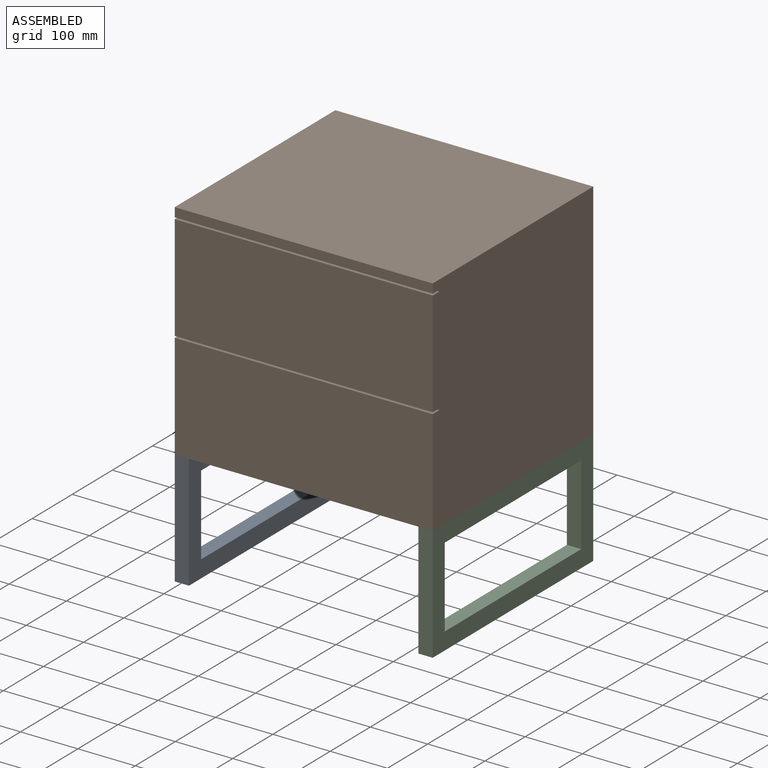
[diagram: assembled view]
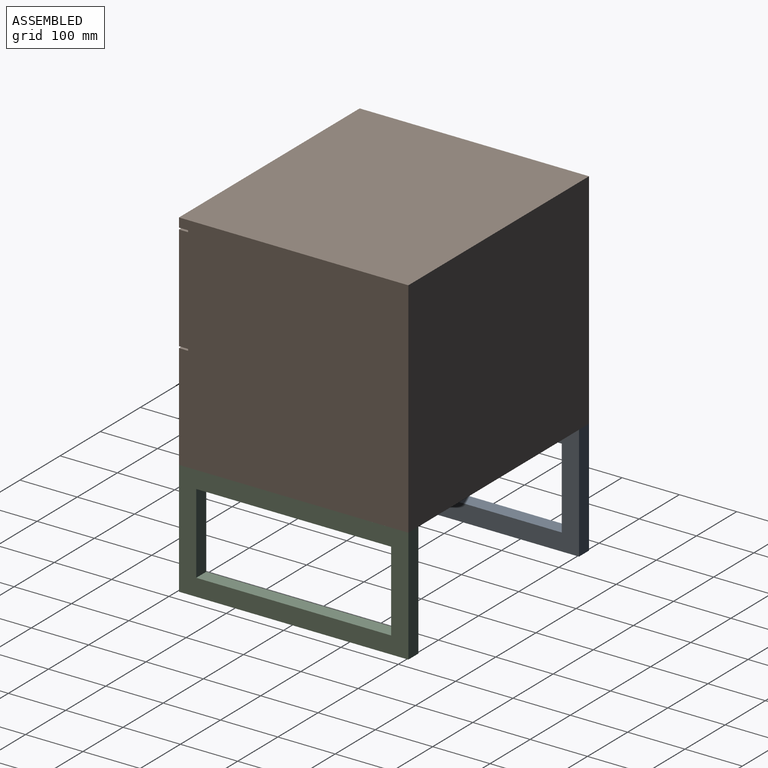
[diagram: assembled view, second angle]
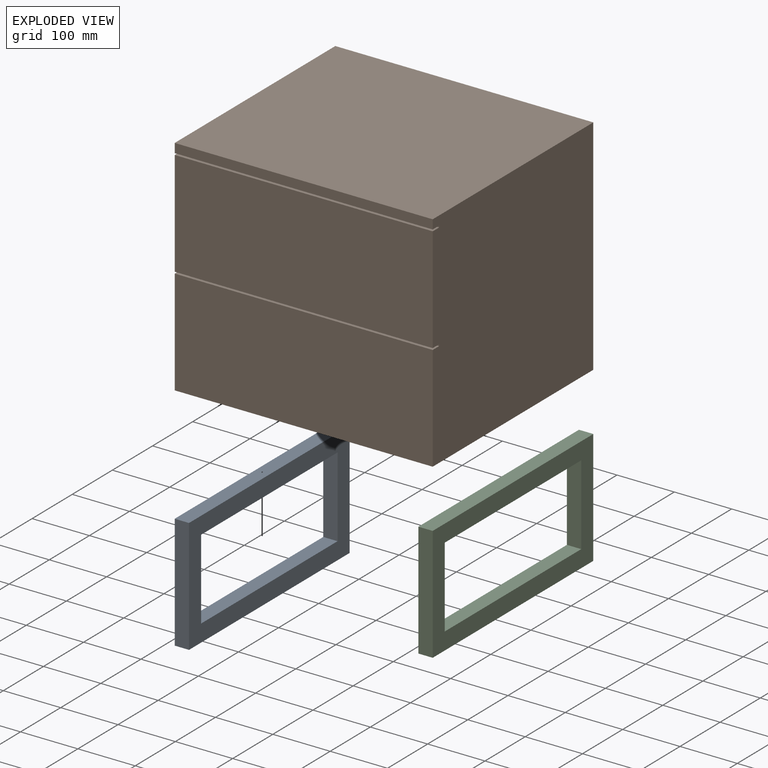
[diagram: exploded view]
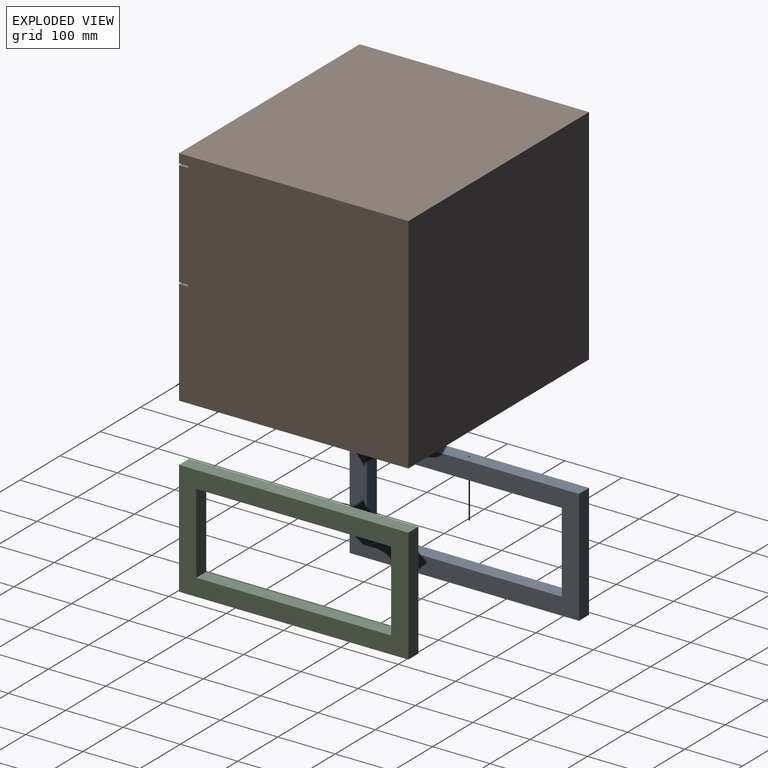
[diagram: exploded view, second angle]
ASSEMBLY  parts=3 mates=2
PART A: 10 faces, bbox 25x400x200 mm
  f0: plane 140x25mm, normal (0,-1,0), area 3500mm2, adj f1,f7,f8,f9
  f1: plane 340x25mm, normal (0,0,1), area 8500mm2, adj f0,f2,f8,f9
  f2: plane 140x25mm, normal (0,1,0), area 3500mm2, adj f1,f7,f8,f9
  f3: plane 200x25mm, normal (0,1,0), area 5000mm2, adj f4,f6,f8,f9
  f4: plane 400x25mm, normal (0,0,1), area 10000mm2, adj f3,f5,f8,f9
  f5: plane 200x25mm, normal (0,-1,0), area 5000mm2, adj f4,f6,f8,f9
  f6: plane 400x25mm, normal (0,0,-1), area 10000mm2, adj f3,f5,f8,f9
  f7: plane 340x25mm, normal (0,0,-1), area 8500mm2, adj f0,f2,f8,f9
  f8: plane 400x200mm, normal (-1,0,0), area 32400mm2, adj f0,f1,f2,f3,f4,f5,f6,f7
  f9: plane 400x200mm, normal (1,0,0), area 32400mm2, adj f0,f1,f2,f3,f4,f5,f6,f7
PART B: 14 faces, bbox 450x400x390 mm
  f0: plane 450x184mm, normal (0,-1,0), area 82800mm2, adj f2,f4,f8,f12
  f1: plane 450x184mm, normal (0,-1,0), area 82800mm2, adj f2,f4,f5,f9
  f2: plane 400x390mm, normal (1,0,0), area 155904mm2, adj f0,f1,f3,f5,f6,f7,f8,f9
  f3: plane 450x400mm, normal (0,0,1), area 180000mm2, adj f2,f4,f6,f7
  f4: plane 400x390mm, normal (-1,0,0), area 155904mm2, adj f0,f1,f3,f5,f6,f7,f8,f9
  f5: plane 450x400mm, normal (0,0,-1), area 180000mm2, adj f1,f2,f4,f7
  f6: plane 450x16mm, normal (0,-1,0), area 7200mm2, adj f2,f3,f4,f11
  f7: plane 450x390mm, normal (0,1,0), area 175500mm2, adj f2,f3,f4,f5
  f8: plane 450x16mm, normal (0,0,-1), area 7200mm2, adj f0,f2,f4,f10
  f9: plane 450x16mm, normal (0,0,1), area 7200mm2, adj f1,f2,f4,f10
  f10: plane 450x3mm, normal (0,-1,0), area 1350mm2, adj f2,f4,f8,f9
  f11: plane 450x16mm, normal (0,0,-1), area 7200mm2, adj f2,f4,f6,f13
  f12: plane 450x16mm, normal (0,0,1), area 7200mm2, adj f0,f2,f4,f13
  f13: plane 450x3mm, normal (0,-1,0), area 1350mm2, adj f2,f4,f11,f12
PART C: same geometry as A
PLACE A t=(-3904.14,403.29,277.09)mm
PLACE B t=(-4872.13,339.57,277.09)mm
PLACE C t=(-3479.14,403.29,277.09)mm
MATE fastened C.f4 <-> B.f5  axis (0,0,-1) through (778.86,542.84,477.09)mm
MATE fastened A.f4 <-> B.f5  axis (0,0,-1) through (328.86,542.84,477.09)mm
